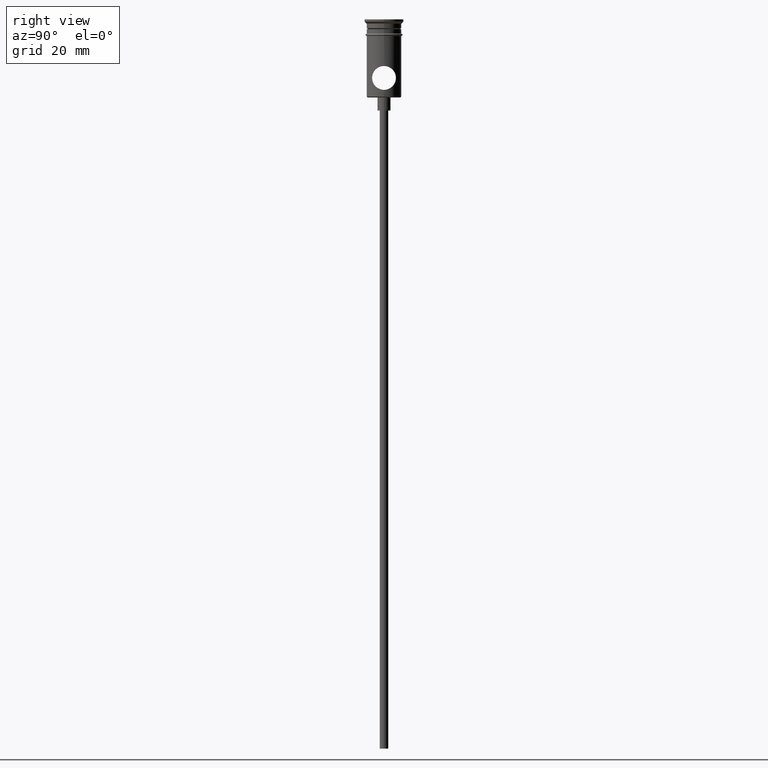
[diagram: clean part render]
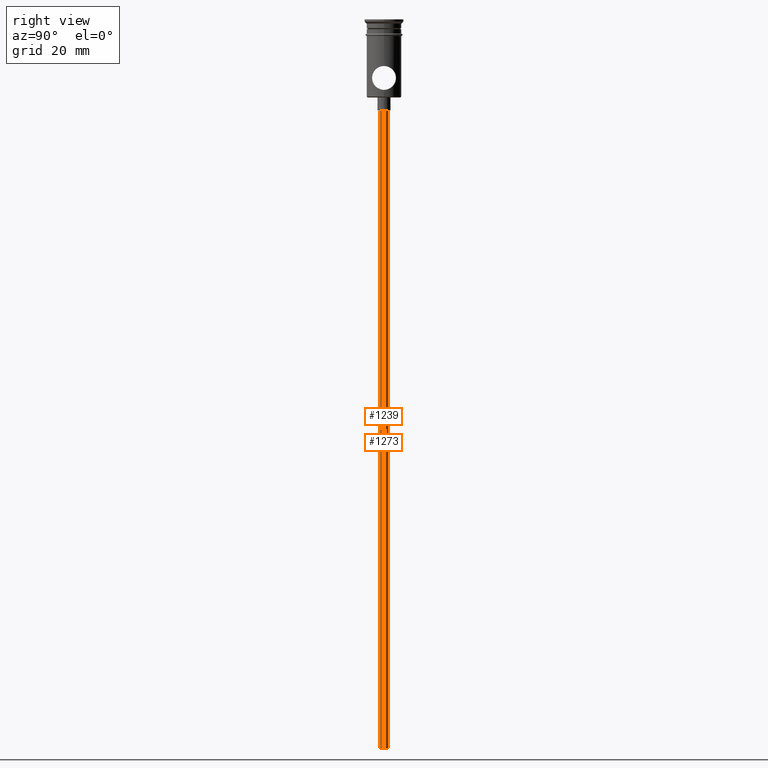
[diagram: same view with one multi-face feature highlighted, each face labeled with its STEP entity id]
A machine part, right view. The highlighted faces form ONE feature: a constant-radius fillet chain: 2 tangent blend faces with common blend radius 1 mm. The faces share edges in the B-rep.
Their STEP definitions:
[1] entity #1239 (Cylinder):
#41 = VERTEX_POINT ( 'NONE', #421 ) ;
#97 = AXIS2_PLACEMENT_3D ( 'NONE', #852, #1168, #399 ) ;
#134 = CYLINDRICAL_SURFACE ( 'NONE', #431, 0.9999999999999997780 ) ;
#148 = FACE_OUTER_BOUND ( 'NONE', #992, .T. ) ;
#156 = CARTESIAN_POINT ( 'NONE',  ( 0.9999999999999997780, 0.000000000000000000, -167.9999999999999716 ) ) ;
#179 = EDGE_CURVE ( 'NONE', #1272, #306, #1082, .T. ) ;
#229 = ORIENTED_EDGE ( 'NONE', *, *, #179, .T. ) ;
#301 = CARTESIAN_POINT ( 'NONE',  ( -0.9999999999999997780, 1.224646799147352961E-16, -167.9999999999999716 ) ) ;
#306 = VERTEX_POINT ( 'NONE', #697 ) ;
#323 = CARTESIAN_POINT ( 'NONE',  ( -0.9999999999999997780, 1.224646799147352961E-16, -167.9999999999999716 ) ) ;
#325 = ORIENTED_EDGE ( 'NONE', *, *, #373, .F. ) ;
#354 = DIRECTION ( 'NONE',  ( 1.000000000000000000, 0.000000000000000000, 0.000000000000000000 ) ) ;
#365 = CARTESIAN_POINT ( 'NONE',  ( 0.000000000000000000, 0.000000000000000000, -167.9999999999999716 ) ) ;
#369 = CARTESIAN_POINT ( 'NONE',  ( 0.000000000000000000, 0.000000000000000000, -20.99999999999999645 ) ) ;
#373 = EDGE_CURVE ( 'NONE', #1093, #41, #615, .T. ) ;
#399 = DIRECTION ( 'NONE',  ( -1.000000000000000000, 0.000000000000000000, 0.000000000000000000 ) ) ;
#419 = EDGE_CURVE ( 'NONE', #306, #41, #1072, .T. ) ;
#421 = CARTESIAN_POINT ( 'NONE',  ( -0.9999999999999997780, 1.224646799147352961E-16, -20.99999999999999645 ) ) ;
#431 = AXIS2_PLACEMENT_3D ( 'NONE', #365, #593, #354 ) ;
#446 = AXIS2_PLACEMENT_3D ( 'NONE', #369, #500, #690 ) ;
#498 = VECTOR ( 'NONE', #965, 1000.000000000000000 ) ;
#500 = DIRECTION ( 'NONE',  ( 0.000000000000000000, 0.000000000000000000, -1.000000000000000000 ) ) ;
#546 = VECTOR ( 'NONE', #1409, 1000.000000000000000 ) ;
#593 = DIRECTION ( 'NONE',  ( -0.000000000000000000, -0.000000000000000000, 1.000000000000000000 ) ) ;
#615 = LINE ( 'NONE', #301, #498 ) ;
#690 = DIRECTION ( 'NONE',  ( -1.000000000000000000, 0.000000000000000000, 0.000000000000000000 ) ) ;
#697 = CARTESIAN_POINT ( 'NONE',  ( 0.9999999999999997780, 0.000000000000000000, -20.99999999999999645 ) ) ;
#852 = CARTESIAN_POINT ( 'NONE',  ( 0.000000000000000000, 0.000000000000000000, -167.9999999999999716 ) ) ;
#904 = ORIENTED_EDGE ( 'NONE', *, *, #1383, .F. ) ;
#965 = DIRECTION ( 'NONE',  ( -0.000000000000000000, -0.000000000000000000, 1.000000000000000000 ) ) ;
#975 = CARTESIAN_POINT ( 'NONE',  ( 0.9999999999999997780, 0.000000000000000000, -167.9999999999999716 ) ) ;
#992 = EDGE_LOOP ( 'NONE', ( #325, #904, #229, #1344 ) ) ;
#1030 = CIRCLE ( 'NONE', #97, 0.9999999999999997780 ) ;
#1072 = CIRCLE ( 'NONE', #446, 0.9999999999999997780 ) ;
#1082 = LINE ( 'NONE', #975, #546 ) ;
#1093 = VERTEX_POINT ( 'NONE', #323 ) ;
#1168 = DIRECTION ( 'NONE',  ( 0.000000000000000000, 0.000000000000000000, -1.000000000000000000 ) ) ;
#1239 = ADVANCED_FACE ( 'NONE', ( #148 ), #134, .T. ) ;
#1272 = VERTEX_POINT ( 'NONE', #156 ) ;
#1344 = ORIENTED_EDGE ( 'NONE', *, *, #419, .T. ) ;
#1383 = EDGE_CURVE ( 'NONE', #1272, #1093, #1030, .T. ) ;
#1409 = DIRECTION ( 'NONE',  ( -0.000000000000000000, -0.000000000000000000, 1.000000000000000000 ) ) ;
[2] entity #1273 (Cylinder):
#41 = VERTEX_POINT ( 'NONE', #421 ) ;
#49 = AXIS2_PLACEMENT_3D ( 'NONE', #1226, #785, #901 ) ;
#133 = EDGE_LOOP ( 'NONE', ( #1415, #817, #274, #182 ) ) ;
#156 = CARTESIAN_POINT ( 'NONE',  ( 0.9999999999999997780, 0.000000000000000000, -167.9999999999999716 ) ) ;
#168 = EDGE_CURVE ( 'NONE', #41, #306, #1054, .T. ) ;
#179 = EDGE_CURVE ( 'NONE', #1272, #306, #1082, .T. ) ;
#182 = ORIENTED_EDGE ( 'NONE', *, *, #179, .F. ) ;
#274 = ORIENTED_EDGE ( 'NONE', *, *, #168, .T. ) ;
#301 = CARTESIAN_POINT ( 'NONE',  ( -0.9999999999999997780, 1.224646799147352961E-16, -167.9999999999999716 ) ) ;
#306 = VERTEX_POINT ( 'NONE', #697 ) ;
#323 = CARTESIAN_POINT ( 'NONE',  ( -0.9999999999999997780, 1.224646799147352961E-16, -167.9999999999999716 ) ) ;
#348 = DIRECTION ( 'NONE',  ( 1.000000000000000000, 0.000000000000000000, 0.000000000000000000 ) ) ;
#373 = EDGE_CURVE ( 'NONE', #1093, #41, #615, .T. ) ;
#421 = CARTESIAN_POINT ( 'NONE',  ( -0.9999999999999997780, 1.224646799147352961E-16, -20.99999999999999645 ) ) ;
#498 = VECTOR ( 'NONE', #965, 1000.000000000000000 ) ;
#546 = VECTOR ( 'NONE', #1409, 1000.000000000000000 ) ;
#571 = FACE_OUTER_BOUND ( 'NONE', #133, .T. ) ;
#615 = LINE ( 'NONE', #301, #498 ) ;
#637 = DIRECTION ( 'NONE',  ( -1.000000000000000000, 0.000000000000000000, 0.000000000000000000 ) ) ;
#697 = CARTESIAN_POINT ( 'NONE',  ( 0.9999999999999997780, 0.000000000000000000, -20.99999999999999645 ) ) ;
#723 = EDGE_CURVE ( 'NONE', #1093, #1272, #940, .T. ) ;
#785 = DIRECTION ( 'NONE',  ( 0.000000000000000000, 0.000000000000000000, -1.000000000000000000 ) ) ;
#817 = ORIENTED_EDGE ( 'NONE', *, *, #373, .T. ) ;
#878 = CARTESIAN_POINT ( 'NONE',  ( 0.000000000000000000, 0.000000000000000000, -20.99999999999999645 ) ) ;
#901 = DIRECTION ( 'NONE',  ( -1.000000000000000000, 0.000000000000000000, 0.000000000000000000 ) ) ;
#919 = CYLINDRICAL_SURFACE ( 'NONE', #1216, 0.9999999999999997780 ) ;
#940 = CIRCLE ( 'NONE', #49, 0.9999999999999997780 ) ;
#965 = DIRECTION ( 'NONE',  ( -0.000000000000000000, -0.000000000000000000, 1.000000000000000000 ) ) ;
#975 = CARTESIAN_POINT ( 'NONE',  ( 0.9999999999999997780, 0.000000000000000000, -167.9999999999999716 ) ) ;
#1054 = CIRCLE ( 'NONE', #1099, 0.9999999999999997780 ) ;
#1082 = LINE ( 'NONE', #975, #546 ) ;
#1093 = VERTEX_POINT ( 'NONE', #323 ) ;
#1099 = AXIS2_PLACEMENT_3D ( 'NONE', #878, #1418, #637 ) ;
#1142 = DIRECTION ( 'NONE',  ( -0.000000000000000000, -0.000000000000000000, 1.000000000000000000 ) ) ;
#1216 = AXIS2_PLACEMENT_3D ( 'NONE', #1341, #1142, #348 ) ;
#1226 = CARTESIAN_POINT ( 'NONE',  ( 0.000000000000000000, 0.000000000000000000, -167.9999999999999716 ) ) ;
#1272 = VERTEX_POINT ( 'NONE', #156 ) ;
#1273 = ADVANCED_FACE ( 'NONE', ( #571 ), #919, .T. ) ;
#1341 = CARTESIAN_POINT ( 'NONE',  ( 0.000000000000000000, 0.000000000000000000, -167.9999999999999716 ) ) ;
#1409 = DIRECTION ( 'NONE',  ( -0.000000000000000000, -0.000000000000000000, 1.000000000000000000 ) ) ;
#1415 = ORIENTED_EDGE ( 'NONE', *, *, #723, .F. ) ;
#1418 = DIRECTION ( 'NONE',  ( 0.000000000000000000, 0.000000000000000000, -1.000000000000000000 ) ) ;